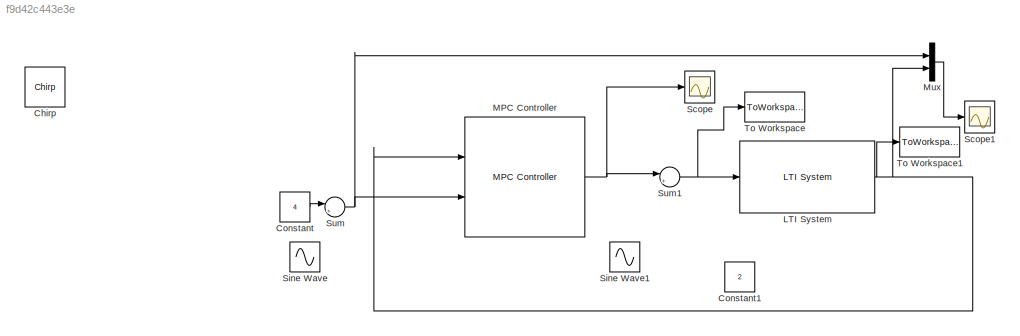
MODEL slx_f9d42c443e3e
KIND model
CONFIG AbsTol = auto
CONFIG FixedStep = auto
CONFIG MaxStep = auto
CONFIG MinStep = auto
CONFIG RelTol = 1e-3
CONFIG SampleTimeConstraint = Unconstrained
CONFIG Solver = ode45
CONFIG SolverMode = Auto
CONFIG SolverName = ode45
CONFIG StartTime = 0.0
CONFIG StopTime = 200
BLOCK [Reference] Chirp  REF=dspsrcs4/Chirp
  IOType = siggen
  Ports = [0, 1]
  SourceBlock = dspsrcs4/Chirp
  SourceType = Chirp
  Ts = 1/8000
  Tsweep = 1
  datatype = Double
  f0 = 1000
  f1 = 4000
  mode = Unidirectional
  phase = 0
  spf = 1
  sweep = Linear
  t1 = 1
BLOCK [Constant] Constant
  Value = 4
BLOCK [Constant] Constant1
  Value = 2
BLOCK [Reference] LTI System  REF=cstblocks/LTI System
  IC = []
  Ports = [1, 1]
  SourceBlock = cstblocks/LTI System
  SourceType = LTI Block
  sys = inertiaStateSpace
BLOCK [Reference] MPC Controller  REF=mpclib/MPC Controller  (lib defined in mdl_ae329e0e0455)
  BlockDataType = double
  Ports = [2, 1]
  SCDEnableBlockLinearizationSpecification = on
  SampleTimeInherited = off
  SourceBlock = mpclib/MPC Controller
  SourceType = MPC
  cost_outport = off
  duwt_inport = off
  enable_value = 0
  from_project = off
  is_designfromscratch = 0
  is_multiple = 0
  lims_inport = off
  md_from_ws = off
  md_inport = off
  md_preview = off
  md_signal_name = []
  mpcobj = MPCobj
  mv_inport = off
  n_md = 0
  n_mo = 1
  n_mv = 1
  n_ts = 0.1
  project_file = MPCtask.mat
  ref_from_ws = off
  ref_preview = off
  ref_signal_name = []
  return_qpstatus = off
  return_sequence = off
  return_state = off
  return_u0 = off
  rhoeps_inport = off
  state_inport = off
  switch_inport = off
  uref_inport = off
  uwt_inport = off
  ywt_inport = off
BLOCK [Mux] Mux
  DisplayOption = bar
  Inputs = 2
  Ports = [2, 1]
BLOCK [Scope] Scope
  Floating = off
  NumInputPorts = 1
  Ports = [1]
BLOCK [Scope] Scope1
  Floating = off
  LimitDataPoints = off
  NumInputPorts = 1
  Ports = [1]
  SaveName = ScopeData1
BLOCK [Sin] Sine Wave
  Amplitude = 2
  Frequency = 0.1
  Ports = [0, 1]
  SampleTime = 0
BLOCK [Sin] Sine Wave1
  Frequency = 0.05
  Ports = [0, 1]
  SampleTime = 0
BLOCK [Sum] Sum
  IconShape = round
  InputSameDT = off
  Inputs = |++
  OutDataTypeStr = Inherit: Inherit via internal rule
  Ports = [2, 1]
  SaturateOnIntegerOverflow = off
BLOCK [Sum] Sum1
  IconShape = round
  InputSameDT = off
  Inputs = |++
  OutDataTypeStr = Inherit: Inherit via internal rule
  Ports = [2, 1]
  SaturateOnIntegerOverflow = off
BLOCK [ToWorkspace] To Workspace
  FixptAsFi = on
  MaxDataPoints = inf
  Ports = [1]
  SampleTime = 0.1
  Save2DSignal = 3-D array (concatenate along third dimension)
  VariableName = mpc_u
BLOCK [ToWorkspace] To Workspace1
  FixptAsFi = on
  MaxDataPoints = inf
  Ports = [1]
  SampleTime = 0.1
  Save2DSignal = 3-D array (concatenate along third dimension)
  VariableName = mpc_y
LINE Constant:1 -> Sum:1
NET LTI System:1 -> MPC Controller:1, Mux:2, To Workspace1:1
NET MPC Controller:1 -> Scope:1, Sum1:1
LINE Mux:1 -> Scope1:1
NET Sum1:1 -> LTI System:1, To Workspace:1
NET Sum:1 -> MPC Controller:2, Mux:1
note: NET lines group one-source signal fan-out (src -> all destinations, sorted); 1:1 wires keep LINE
